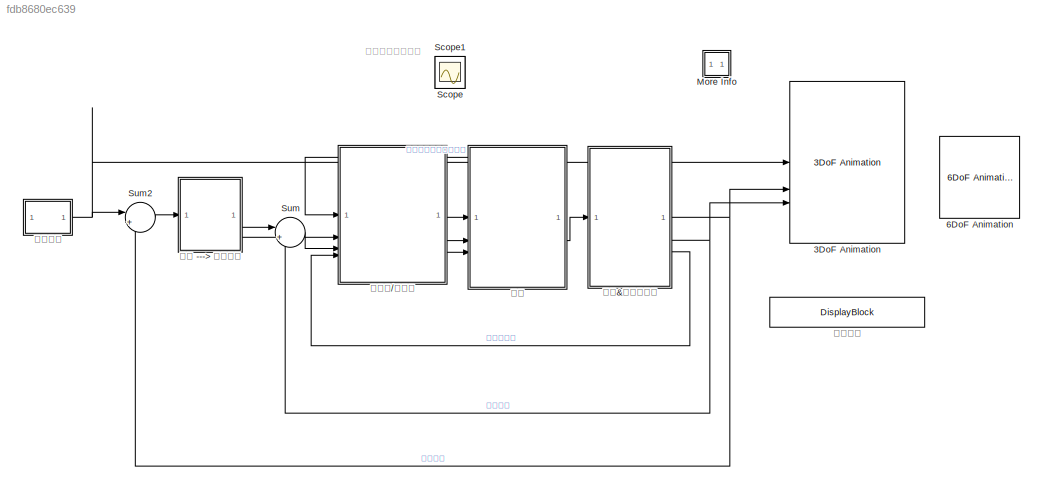
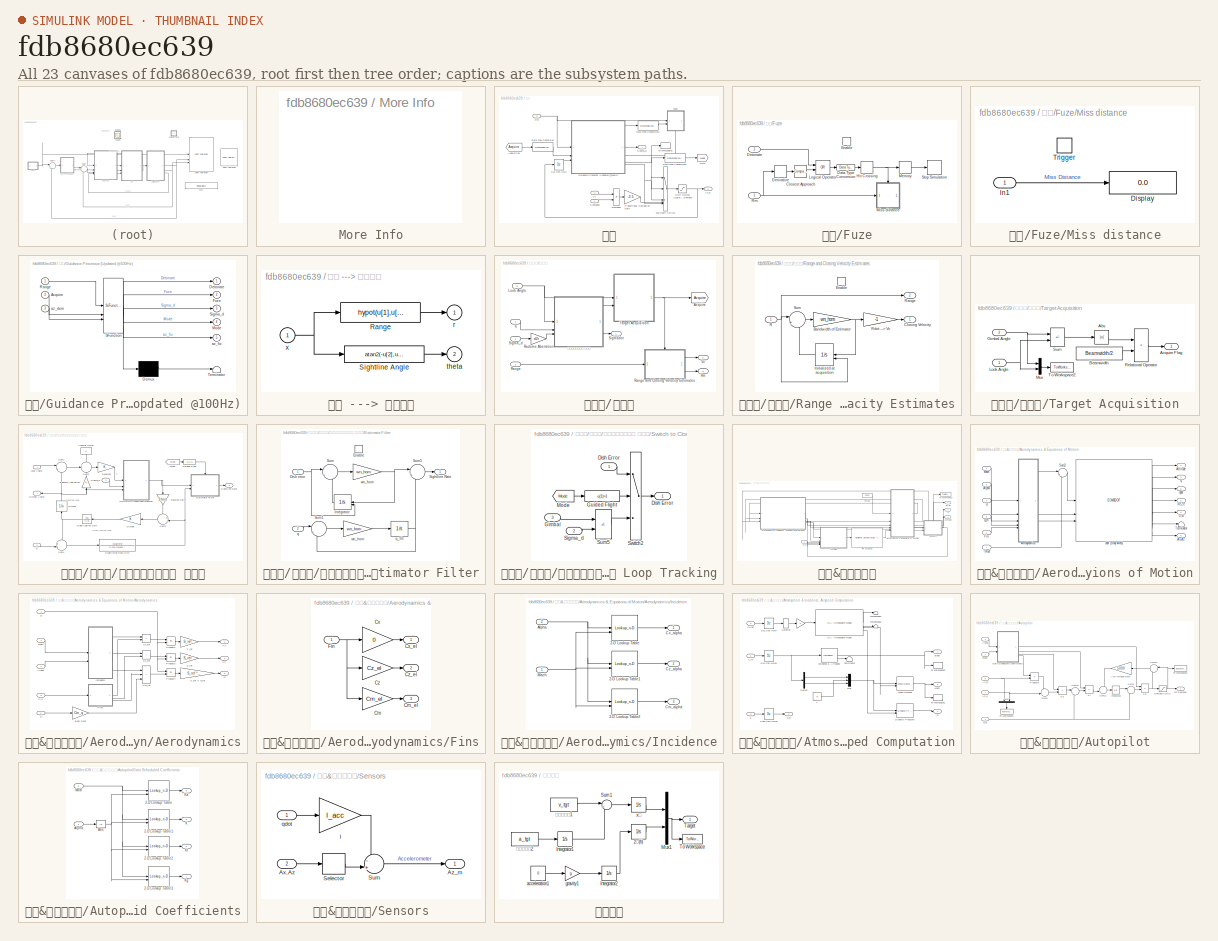
[diagram: thumbnail index - all 23 canvases of the model, root first then tree order]
MODEL slx_fdb8680ec639
KIND model
CONFIG AbsTol = 1e-6
CONFIG EnableMultiTasking = off
CONFIG FixedStep = 0.001
CONFIG MaxStep = auto
CONFIG MinStep = auto
CONFIG PreLoadFcn = aero_guid_dat
CONFIG RelTol = 1e-3
CONFIG SampleTimeConstraint = Unconstrained
CONFIG SolverName = FixedStepAuto
CONFIG StartTime = 0.0
CONFIG StopFcn = aero_guid_plot
CONFIG StopTime = 20
BLOCK [Reference] 3DoF Animation  REF=aerolibanim/3DoF Animation
  SourceBlock = aerolibanim/3DoF Animation
  SourceType = 3DoF_Animation
BLOCK [Reference] 6DoF Animation  REF=aerolibanim/6DoF Animation
  SourceBlock = aerolibanim/6DoF Animation
  SourceType = 6DoF_Animation
BLOCK [SubSystem] More Info
  OpenFcn = showExample('simulink_aerospace/DesigningAGuidanceSystemInMATLABAndSimulinkExample')
BLOCK [Scope] Scope
  Floating = off
  IOType = viewer
  NumInputPorts = 1
  ScopeSpecificationString = Simulink.scopes.TimeScopeBlockCfg('CurrentConfiguration', extmgr.ConfigurationSet(extmgr.Configuration('Core','General UI',true),extmgr.Configuration('Core','Source UI',true),extmgr.Configuration('Sources','WiredSimulink',true),extmgr.Configuration('Visuals','Time Domain',true,'SerializedDisplays',{struct('MinYLimReal','-10.00000','MaxYLimReal','10.00000','YLabelReal','','MinYLimMag','0.00000','Ma...<+1326ch>
BLOCK [Scope] Scope1
  Floating = off
  IOType = viewer
  NumInputPorts = 1
  ScopeSpecificationString = Simulink.scopes.TimeScopeBlockCfg('CurrentConfiguration', extmgr.ConfigurationSet(extmgr.Configuration('Core','General UI',true),extmgr.Configuration('Core','Source UI',true),extmgr.Configuration('Sources','WiredSimulink',true,'DataLoggingVariableName','ScopeData1'),extmgr.Configuration('Visuals','Time Domain',true,'SerializedDisplays',{struct('MinYLimReal','-10.00000','MaxYLimReal','10.00000','YL...<+1365ch>
BLOCK [Sum] Sum
  InputSameDT = on
  Inputs = |+-
  OutDataTypeStr = Inherit: Same as first input
  SaturateOnIntegerOverflow = on
BLOCK [Sum] Sum2
  InputSameDT = on
  Inputs = |+-
  OutDataTypeStr = Inherit: Same as first input
  SaturateOnIntegerOverflow = on
BLOCK [SubSystem] 制导
BLOCK [UnitDelay] 制导/0.01 Sec Hold
  HasFrameUpgradeWarning = on
  SampleTime = 0.01
BLOCK [From] 制导/Acquisition 
  GotoTag = Acquire
  TagVisibility = global
BLOCK [Outport] 制导/Az_d
  Port = 2
  VectorParamsAs1DForOutWhenUnconnected = off
BLOCK [DataTypeConversion] 制导/Data Type Conversion
  RndMeth = Floor
  SaturateOnIntegerOverflow = off
BLOCK [DataTypeConversion] 制导/Data Type Conversion1
  RndMeth = Floor
  SaturateOnIntegerOverflow = off
BLOCK [DataTypeConversion] 制导/Data Type Conversion2
  RndMeth = Floor
  SaturateOnIntegerOverflow = off
BLOCK [Product] 制导/Demands
  InputSameDT = on
  OutDataTypeStr = Inherit: Same as first input
  SaturateOnIntegerOverflow = on
BLOCK [SubSystem] 制导/Fuze
  NameLocation = top
  ShowPortLabels = none
  TreatAsAtomicUnit = on
BLOCK [Reference] 制导/Fuze/Closest Approach  REF=simulink/Logic and Bit
Operations/Compare
To Zero
  SourceBlock = simulink/Logic and Bit\nOperations/Compare\nTo Zero
  SourceType = Compare To Zero
BLOCK [DataTypeConversion] 制导/Fuze/Data Type Conversion
  OutDataTypeStr = double
  RndMeth = Floor
  SaturateOnIntegerOverflow = off
BLOCK [Derivative] 制导/Fuze/Derivative
BLOCK [Inport] 制导/Fuze/Detonate
  Port = 2
BLOCK [EnablePort] 制导/Fuze/Enable
BLOCK [HitCross] 制导/Fuze/Hit Crossing
  HitCrossingDirection = rising
BLOCK [Logic] 制导/Fuze/Logical Operator
  IconShape = distinctive
  NameLocation = top
  Operator = OR
  OutDataTypeStr = boolean
BLOCK [Memory] 制导/Fuze/Memory
BLOCK [SubSystem] 制导/Fuze/Miss distance
  ShowPortLabels = none
  TreatAsAtomicUnit = on
BLOCK [Display] 制导/Fuze/Miss distance/Display
  Decimation = 1
BLOCK [Inport] 制导/Fuze/Miss distance/In1
BLOCK [TriggerPort] 制导/Fuze/Miss distance/Trigger
  VariantControl = (inherit)
BLOCK [Inport] 制导/Fuze/Rm
BLOCK [Stop] 制导/Fuze/Stop Simulation
BLOCK [Goto] 制导/Goto
  GotoTag = Mode
  TagVisibility = global
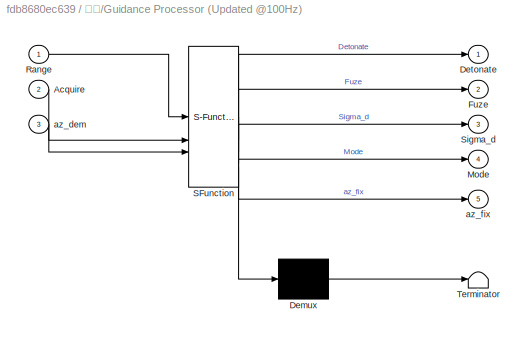
BLOCK [SubSystem] 制导/Guidance Processor (Updated @100Hz)
  ErrorFcn = Stateflow.Translate.translate
  PermitHierarchicalResolution = ExplicitOnly
  SFBlockType = Chart
  TreatAsAtomicUnit = on
BLOCK [Demux] 制导/Guidance Processor (Updated @100Hz)/ Demux 
  Outputs = 1
BLOCK [S-Function] 制导/Guidance Processor (Updated @100Hz)/ SFunction 
  EnableBusSupport = on
  FunctionName = sf_sfun
  PortCounts = [3 6]
  SFcnIsStateOwnerBlock = off
  SFunctionDeploymentMode = off
  Tag = Stateflow S-Function 1
BLOCK [Terminator] 制导/Guidance Processor (Updated @100Hz)/ Terminator 
BLOCK [Inport] 制导/Guidance Processor (Updated @100Hz)/Acquire
  Port = 2
BLOCK [Outport] 制导/Guidance Processor (Updated @100Hz)/Detonate
  VectorParamsAs1DForOutWhenUnconnected = off
BLOCK [Outport] 制导/Guidance Processor (Updated @100Hz)/Fuze
  Port = 2
  VectorParamsAs1DForOutWhenUnconnected = off
BLOCK [Outport] 制导/Guidance Processor (Updated @100Hz)/Mode
  Port = 4
  VectorParamsAs1DForOutWhenUnconnected = off
BLOCK [Inport] 制导/Guidance Processor (Updated @100Hz)/Range
BLOCK [Outport] 制导/Guidance Processor (Updated @100Hz)/Sigma_d
  Port = 3
  VectorParamsAs1DForOutWhenUnconnected = off
BLOCK [Inport] 制导/Guidance Processor (Updated @100Hz)/az_dem
  Port = 3
BLOCK [Outport] 制导/Guidance Processor (Updated @100Hz)/az_fix
  Port = 5
  VectorParamsAs1DForOutWhenUnconnected = off
BLOCK [Saturate] 制导/Limit Normal Acceleration Demand 
  LowerLimit = -max_acc
  UpperLimit = max_acc
BLOCK [MultiPortSwitch] 制导/Multiport Switch
  Inputs = 4
BLOCK [Gain] 制导/Proportional Navigation Gain
  Gain = -3.5
  OutDataTypeStr = Inherit: Same as input
  ParamDataTypeStr = Inherit: Same as input
  SaturateOnIntegerOverflow = on
BLOCK [Inport] 制导/Rm
  Port = 3
BLOCK [Outport] 制导/Sigma_d
  VectorParamsAs1DForOutWhenUnconnected = off
BLOCK [Inport] 制导/Sigmadot
BLOCK [ToWorkspace] 制导/To Workspace1
  MaxDataPoints = inf
  SaveFormat = Structure With Time
  VariableName = Mode
BLOCK [Inport] 制导/Vc
  NameLocation = top
  Port = 2
BLOCK [SubSystem] 导弹 ---> 目标分离
BLOCK [Fcn] 导弹 ---> 目标分离/Range
  Expr = hypot(u[1],u[2])
BLOCK [Fcn] 导弹 ---> 目标分离/Sightline Angle
  Expr = atan2(-u[2],u[1])
BLOCK [Outport] 导弹 ---> 目标分离/r
  InitialOutput = 0
  VectorParamsAs1DForOutWhenUnconnected = off
BLOCK [Outport] 导弹 ---> 目标分离/theta
  InitialOutput = 0
  Port = 2
  VectorParamsAs1DForOutWhenUnconnected = off
BLOCK [Inport] 导弹 ---> 目标分离/x
BLOCK [SubSystem] 导弹头//跟踪器
BLOCK [Goto] 导弹头//跟踪器/Acquire
  GotoTag = Acquire
  NameLocation = top
  TagVisibility = global
BLOCK [Inport] 导弹头//跟踪器/Look Angle
  Port = 3
BLOCK [Gain] 导弹头//跟踪器/Radome Aberration
  Gain = d2r
  OutDataTypeStr = Inherit: Same as input
  ParamDataTypeStr = Inherit: Same as input
  SaturateOnIntegerOverflow = on
BLOCK [Inport] 导弹头//跟踪器/Range
  Port = 2
BLOCK [SubSystem] 导弹头//跟踪器/Range and Closing Velocity Estimates
  TreatAsAtomicUnit = on
BLOCK [Gain] 导弹头//跟踪器/Range and Closing Velocity Estimates/Bandwidth of Estimator
  Gain = wn_hom
  OutDataTypeStr = Inherit: Same as input
  ParamDataTypeStr = Inherit: Same as input
  SaturateOnIntegerOverflow = on
BLOCK [Outport] 导弹头//跟踪器/Range and Closing Velocity Estimates/Closing Velocity
  InitialOutput = 0
  VectorParamsAs1DForOutWhenUnconnected = off
BLOCK [EnablePort] 导弹头//跟踪器/Range and Closing Velocity Estimates/Enable
  StatesWhenEnabling = reset
BLOCK [Integrator] 导弹头//跟踪器/Range and Closing Velocity Estimates/Initialized at acquisition
  InitialConditionSource = external
BLOCK [Inport] 导弹头//跟踪器/Range and Closing Velocity Estimates/R
BLOCK [Outport] 导弹头//跟踪器/Range and Closing Velocity Estimates/Range
  InitialOutput = 0
  Port = 2
  VectorParamsAs1DForOutWhenUnconnected = off
BLOCK [Gain] 导弹头//跟踪器/Range and Closing Velocity Estimates/Rdot ---> Vc
  Gain = -1
  OutDataTypeStr = Inherit: Same as input
  ParamDataTypeStr = Inherit: Same as input
  SaturateOnIntegerOverflow = on
BLOCK [Sum] 导弹头//跟踪器/Range and Closing Velocity Estimates/Sum
  InputSameDT = on
  Inputs = |+-
  OutDataTypeStr = Inherit: Same as first input
  SaturateOnIntegerOverflow = on
BLOCK [Outport] 导弹头//跟踪器/Rm
  Port = 3
  VectorParamsAs1DForOutWhenUnconnected = off
BLOCK [Inport] 导弹头//跟踪器/Sigma_d
BLOCK [Outport] 导弹头//跟踪器/Sigmadot
  VectorParamsAs1DForOutWhenUnconnected = off
BLOCK [SubSystem] 导弹头//跟踪器/Target Acquisition
BLOCK [Abs] 导弹头//跟踪器/Target Acquisition/Abs
BLOCK [Outport] 导弹头//跟踪器/Target Acquisition/Acquire Flag
  VectorParamsAs1DForOutWhenUnconnected = off
BLOCK [Constant] 导弹头//跟踪器/Target Acquisition/Beamwidth
  Value = Beamwidth/2
BLOCK [Inport] 导弹头//跟踪器/Target Acquisition/Gimbal Angle
  Port = 2
BLOCK [Inport] 导弹头//跟踪器/Target Acquisition/Look Angle
BLOCK [Mux] 导弹头//跟踪器/Target Acquisition/Mux
  DisplayOption = bar
  Inputs = 2
  NameLocation = top
BLOCK [RelationalOperator] 导弹头//跟踪器/Target Acquisition/Relational Operator
  Operator = <
  OutDataTypeStr = boolean
BLOCK [Sum] 导弹头//跟踪器/Target Acquisition/Sum
  IconShape = rectangular
  InputSameDT = on
  Inputs = +-
  OutDataTypeStr = Inherit: Same as first input
  SaturateOnIntegerOverflow = on
BLOCK [ToWorkspace] 导弹头//跟踪器/Target Acquisition/To Workspace2
  MaxDataPoints = inf
  NameLocation = top
  SampleTime = -1
  SaveFormat = Structure With Time
  VariableName = Gimbal
BLOCK [Outport] 导弹头//跟踪器/Vc
  Port = 2
  VectorParamsAs1DForOutWhenUnconnected = off
BLOCK [Inport] 导弹头//跟踪器/q
  Port = 4
BLOCK [SubSystem] 导弹头//跟踪器/追踪器和视线速率 估计量
BLOCK [Constant] 导弹头//跟踪器/追踪器和视线速率 估计量/Angular Noise
  NameLocation = left
  Value = 0
BLOCK [SubSystem] 导弹头//跟踪器/追踪器和视线速率 估计量/Estimator Filter
  TreatAsAtomicUnit = on
BLOCK [Inport] 导弹头//跟踪器/追踪器和视线速率 估计量/Estimator Filter/Dish error
BLOCK [EnablePort] 导弹头//跟踪器/追踪器和视线速率 估计量/Estimator Filter/Enable
  StatesWhenEnabling = reset
BLOCK [Integrator] 导弹头//跟踪器/追踪器和视线速率 估计量/Estimator Filter/Integrator
  InitialConditionSource = external
BLOCK [Outport] 导弹头//跟踪器/追踪器和视线速率 估计量/Estimator Filter/Sightline Rate
  InitialOutput = 0
  VectorParamsAs1DForOutWhenUnconnected = off
BLOCK [Sum] 导弹头//跟踪器/追踪器和视线速率 估计量/Estimator Filter/Sum
  InputSameDT = on
  Inputs = |+-
  OutDataTypeStr = Inherit: Same as first input
  SaturateOnIntegerOverflow = on
BLOCK [Sum] 导弹头//跟踪器/追踪器和视线速率 估计量/Estimator Filter/Sum1
  InputSameDT = on
  Inputs = |+-
  OutDataTypeStr = Inherit: Same as first input
  SaturateOnIntegerOverflow = on
BLOCK [Sum] 导弹头//跟踪器/追踪器和视线速率 估计量/Estimator Filter/Sum5
  InputSameDT = on
  Inputs = |++
  OutDataTypeStr = Inherit: Same as first input
  SaturateOnIntegerOverflow = on
BLOCK [Inport] 导弹头//跟踪器/追踪器和视线速率 估计量/Estimator Filter/q
  Port = 2
BLOCK [Integrator] 导弹头//跟踪器/追踪器和视线速率 估计量/Estimator Filter/q_filt
BLOCK [Gain] 导弹头//跟踪器/追踪器和视线速率 估计量/Estimator Filter/wn_hom
  Gain = wn_hom
  OutDataTypeStr = Inherit: Same as input
  ParamDataTypeStr = Inherit: Same as input
  SaturateOnIntegerOverflow = on
BLOCK [Gain] 导弹头//跟踪器/追踪器和视线速率 估计量/Estimator Filter/wn_hom  
  Gain = wn_hom
  OutDataTypeStr = Inherit: Same as input
  ParamDataTypeStr = Inherit: Same as input
  SaturateOnIntegerOverflow = on
BLOCK [Gain] 导弹头//跟踪器/追踪器和视线速率 估计量/Gimbal
  OutDataTypeStr = Inherit: Same as input
  ParamDataTypeStr = Inherit: Same as input
  SaturateOnIntegerOverflow = on
BLOCK [Integrator] 导弹头//跟踪器/追踪器和视线速率 估计量/Gimbal 
  LimitOutput = on
  LowerSaturationLimit = min_gimbal
  NameLocation = left
  UpperSaturationLimit = max_gimbal
BLOCK [Outport] 导弹头//跟踪器/追踪器和视线速率 估计量/Gimbal Angle 
  VectorParamsAs1DForOutWhenUnconnected = off
BLOCK [Fcn] 导弹头//跟踪器/追踪器和视线速率 估计量/Guided Flight
  Expr = u(1)>1
BLOCK [Inport] 导弹头//跟踪器/追踪器和视线速率 估计量/Look Angle
BLOCK [From] 导弹头//跟踪器/追踪器和视线速率 估计量/Mode
  GotoTag = Mode
  TagVisibility = global
BLOCK [Gain] 导弹头//跟踪器/追踪器和视线速率 估计量/Radome Aberration
  Gain = K_r
  NameLocation = left
  OutDataTypeStr = Inherit: Same as input
  ParamDataTypeStr = Inherit: Same as input
  SaturateOnIntegerOverflow = on
BLOCK [Gain] 导弹头//跟踪器/追踪器和视线速率 估计量/Receiver
  OutDataTypeStr = Inherit: Same as input
  ParamDataTypeStr = Inherit: Same as input
  SaturateOnIntegerOverflow = on
BLOCK [Outport] 导弹头//跟踪器/追踪器和视线速率 估计量/Sightline Rate
  Port = 2
  VectorParamsAs1DForOutWhenUnconnected = off
BLOCK [Inport] 导弹头//跟踪器/追踪器和视线速率 估计量/Sigma_d
  Port = 3
BLOCK [TransferFcn] 导弹头//跟踪器/追踪器和视线速率 估计量/Stabilization Gain
  Denominator = [1 0]
  Numerator = [Ks]
BLOCK [TransferFcn] 导弹头//跟踪器/追踪器和视线速率 估计量/Stabilizing Rate Gyro
  Denominator = [1 2*0.7*wgyro wgyro^2]
  Numerator = [wgyro^2]
BLOCK [Sum] 导弹头//跟踪器/追踪器和视线速率 估计量/Sum1
  InputSameDT = on
  Inputs = |+-
  OutDataTypeStr = Inherit: Same as first input
  SaturateOnIntegerOverflow = on
BLOCK [Sum] 导弹头//跟踪器/追踪器和视线速率 估计量/Sum2
  InputSameDT = on
  Inputs = +++
  OutDataTypeStr = Inherit: Same as first input
  SaturateOnIntegerOverflow = on
BLOCK [Sum] 导弹头//跟踪器/追踪器和视线速率 估计量/Sum3
  InputSameDT = on
  Inputs = +-|
  OutDataTypeStr = Inherit: Same as first input
  SaturateOnIntegerOverflow = on
BLOCK [Sum] 导弹头//跟踪器/追踪器和视线速率 估计量/Sum4
  InputSameDT = on
  Inputs = ++|
  OutDataTypeStr = Inherit: Same as first input
  SaturateOnIntegerOverflow = on
BLOCK [SubSystem] 导弹头//跟踪器/追踪器和视线速率 估计量/Switch to Closed Loop Tracking
BLOCK [Inport] 导弹头//跟踪器/追踪器和视线速率 估计量/Switch to Closed Loop Tracking/Dish Error
BLOCK [Outport] 导弹头//跟踪器/追踪器和视线速率 估计量/Switch to Closed Loop Tracking/Dish Error 
  VectorParamsAs1DForOutWhenUnconnected = off
BLOCK [Inport] 导弹头//跟踪器/追踪器和视线速率 估计量/Switch to Closed Loop Tracking/Gimbal
  Port = 3
BLOCK [Fcn] 导弹头//跟踪器/追踪器和视线速率 估计量/Switch to Closed Loop Tracking/Guided Flight
  Expr = u(1)>1
  NameLocation = top
BLOCK [From] 导弹头//跟踪器/追踪器和视线速率 估计量/Switch to Closed Loop Tracking/Mode
  GotoTag = Mode
  TagVisibility = global
BLOCK [Inport] 导弹头//跟踪器/追踪器和视线速率 估计量/Switch to Closed Loop Tracking/Sigma_d
  Port = 2
BLOCK [Sum] 导弹头//跟踪器/追踪器和视线速率 估计量/Switch to Closed Loop Tracking/Sum5
  IconShape = rectangular
  InputSameDT = on
  Inputs = -+
  OutDataTypeStr = Inherit: Same as first input
  SaturateOnIntegerOverflow = on
BLOCK [Switch] 导弹头//跟踪器/追踪器和视线速率 估计量/Switch to Closed Loop Tracking/Switch2
  Threshold = 0.5
BLOCK [Gain] 导弹头//跟踪器/追踪器和视线速率 估计量/Tracking Gain
  Gain = 1/tors
  NameLocation = right
  OutDataTypeStr = Inherit: Same as input
  ParamDataTypeStr = Inherit: Same as input
  SaturateOnIntegerOverflow = on
BLOCK [Inport] 导弹头//跟踪器/追踪器和视线速率 估计量/q
  Port = 2
BLOCK [SubSystem] 机身&自动驾驶仪
BLOCK [SubSystem] 机身&自动驾驶仪/Aerodynamics & Equations of Motion
BLOCK [EOM3DOF] 机身&自动驾驶仪/Aerodynamics & Equations of Motion/3dof (Body Axes)
  Iyy = Iyy
  abi_flag = on
  alpha_ini = alpha_ini
  g = g
  mass = mass
  pos_ini = [x_ini -h_ini]
  q_ini = q_ini
  theta_ini = theta_ini
  v_ini = v_ini
BLOCK [SubSystem] 机身&自动驾驶仪/Aerodynamics & Equations of Motion/Aerodynamics
BLOCK [Outport] 机身&自动驾驶仪/Aerodynamics & Equations of Motion/Aerodynamics/ M
  InitialOutput = 0
  Port = 3
  VectorParamsAs1DForOutWhenUnconnected = off
BLOCK [Inport] 机身&自动驾驶仪/Aerodynamics & Equations of Motion/Aerodynamics/Alpha
  Port = 2
BLOCK [Gain] 机身&自动驾驶仪/Aerodynamics & Equations of Motion/Aerodynamics/Body Rate
  Gain = Cm_q
  OutDataTypeStr = Inherit: Same as input
  ParamDataTypeStr = Inherit: Same as input
  SaturateOnIntegerOverflow = on
BLOCK [Sum] 机身&自动驾驶仪/Aerodynamics & Equations of Motion/Aerodynamics/Cm_tot
  IconShape = rectangular
  InputSameDT = on
  Inputs = +++
  OutDataTypeStr = Inherit: Same as first input
  SaturateOnIntegerOverflow = on
BLOCK [Sum] 机身&自动驾驶仪/Aerodynamics & Equations of Motion/Aerodynamics/Cx_tot
  IconShape = rectangular
  InputSameDT = on
  OutDataTypeStr = Inherit: Same as first input
  SaturateOnIntegerOverflow = on
BLOCK [Sum] 机身&自动驾驶仪/Aerodynamics & Equations of Motion/Aerodynamics/Cz_tot
  IconShape = rectangular
  InputSameDT = on
  OutDataTypeStr = Inherit: Same as first input
  SaturateOnIntegerOverflow = on
BLOCK [Inport] 机身&自动驾驶仪/Aerodynamics & Equations of Motion/Aerodynamics/Fin
  Port = 5
BLOCK [SubSystem] 机身&自动驾驶仪/Aerodynamics & Equations of Motion/Aerodynamics/Fins
BLOCK [Gain] 机身&自动驾驶仪/Aerodynamics & Equations of Motion/Aerodynamics/Fins/Cm
  Gain = Cm_el
  OutDataTypeStr = Inherit: Same as input
  ParamDataTypeStr = Inherit: Same as input
  SaturateOnIntegerOverflow = on
BLOCK [Outport] 机身&自动驾驶仪/Aerodynamics & Equations of Motion/Aerodynamics/Fins/Cm_el
  InitialOutput = 0
  Port = 3
  VectorParamsAs1DForOutWhenUnconnected = off
BLOCK [Gain] 机身&自动驾驶仪/Aerodynamics & Equations of Motion/Aerodynamics/Fins/Cx
  Gain = 0
  OutDataTypeStr = Inherit: Same as input
  ParamDataTypeStr = Inherit: Same as input
  SaturateOnIntegerOverflow = on
BLOCK [Outport] 机身&自动驾驶仪/Aerodynamics & Equations of Motion/Aerodynamics/Fins/Cx_el
  InitialOutput = 0
  VectorParamsAs1DForOutWhenUnconnected = off
BLOCK [Gain] 机身&自动驾驶仪/Aerodynamics & Equations of Motion/Aerodynamics/Fins/Cz
  Gain = Cz_el
  OutDataTypeStr = Inherit: Same as input
  ParamDataTypeStr = Inherit: Same as input
  SaturateOnIntegerOverflow = on
BLOCK [Outport] 机身&自动驾驶仪/Aerodynamics & Equations of Motion/Aerodynamics/Fins/Cz_el
  InitialOutput = 0
  Port = 2
  VectorParamsAs1DForOutWhenUnconnected = off
BLOCK [Inport] 机身&自动驾驶仪/Aerodynamics & Equations of Motion/Aerodynamics/Fins/Fin
BLOCK [Outport] 机身&自动驾驶仪/Aerodynamics & Equations of Motion/Aerodynamics/Fx
  InitialOutput = [0]
  VectorParamsAs1DForOutWhenUnconnected = off
BLOCK [Outport] 机身&自动驾驶仪/Aerodynamics & Equations of Motion/Aerodynamics/Fz
  InitialOutput = 0
  Port = 2
  VectorParamsAs1DForOutWhenUnconnected = off
BLOCK [SubSystem] 机身&自动驾驶仪/Aerodynamics & Equations of Motion/Aerodynamics/Incidence
BLOCK [Lookup_n-D] 机身&自动驾驶仪/Aerodynamics & Equations of Motion/Aerodynamics/Incidence/2-D Lookup Table
  BreakpointsForDimension1 = alpha_vec
  BreakpointsForDimension2 = Mach_vec
  InputPortMap = u0,u1
  InternalRulePriority = Speed
  RndMeth = Simplest
  Table = Cx_alpha
BLOCK [Lookup_n-D] 机身&自动驾驶仪/Aerodynamics & Equations of Motion/Aerodynamics/Incidence/2-D Lookup Table1
  BreakpointsForDimension1 = alpha_vec
  BreakpointsForDimension2 = Mach_vec
  InputPortMap = u0,u1
  InternalRulePriority = Speed
  RndMeth = Simplest
  Table = Cz_alpha
BLOCK [Lookup_n-D] 机身&自动驾驶仪/Aerodynamics & Equations of Motion/Aerodynamics/Incidence/2-D Lookup Table2
  BreakpointsForDimension1 = alpha_vec
  BreakpointsForDimension2 = Mach_vec
  InputPortMap = u0,u1
  InternalRulePriority = Speed
  RndMeth = Simplest
  Table = Cm_alpha
BLOCK [Inport] 机身&自动驾驶仪/Aerodynamics & Equations of Motion/Aerodynamics/Incidence/Alpha
  Port = 2
BLOCK [Outport] 机身&自动驾驶仪/Aerodynamics & Equations of Motion/Aerodynamics/Incidence/Cm_alpha
  InitialOutput = 0
  Port = 3
  VectorParamsAs1DForOutWhenUnconnected = off
BLOCK [Outport] 机身&自动驾驶仪/Aerodynamics & Equations of Motion/Aerodynamics/Incidence/Cx_alpha
  InitialOutput = 0
  VectorParamsAs1DForOutWhenUnconnected = off
BLOCK [Outport] 机身&自动驾驶仪/Aerodynamics & Equations of Motion/Aerodynamics/Incidence/Cz_alpha
  InitialOutput = 0
  Port = 2
  VectorParamsAs1DForOutWhenUnconnected = off
BLOCK [Inport] 机身&自动驾驶仪/Aerodynamics & Equations of Motion/Aerodynamics/Incidence/Mach
BLOCK [Inport] 机身&自动驾驶仪/Aerodynamics & Equations of Motion/Aerodynamics/Mach
BLOCK [Product] 机身&自动驾驶仪/Aerodynamics & Equations of Motion/Aerodynamics/Product2
  InputSameDT = on
  OutDataTypeStr = Inherit: Same as first input
  SaturateOnIntegerOverflow = on
BLOCK [Product] 机身&自动驾驶仪/Aerodynamics & Equations of Motion/Aerodynamics/Product3
  InputSameDT = on
  OutDataTypeStr = Inherit: Same as first input
  SaturateOnIntegerOverflow = on
BLOCK [Product] 机身&自动驾驶仪/Aerodynamics & Equations of Motion/Aerodynamics/Product4
  InputSameDT = on
  OutDataTypeStr = Inherit: Same as first input
  SaturateOnIntegerOverflow = on
BLOCK [Inport] 机身&自动驾驶仪/Aerodynamics & Equations of Motion/Aerodynamics/Q
  Port = 3
BLOCK [Gain] 机身&自动驾驶仪/Aerodynamics & Equations of Motion/Aerodynamics/S_ref
  Gain = S_ref
  OutDataTypeStr = Inherit: Same as input
  ParamDataTypeStr = Inherit: Same as input
  SaturateOnIntegerOverflow = on
BLOCK [Gain] 机身&自动驾驶仪/Aerodynamics & Equations of Motion/Aerodynamics/S_ref 
  Gain = S_ref
  OutDataTypeStr = Inherit: Same as input
  ParamDataTypeStr = Inherit: Same as input
  SaturateOnIntegerOverflow = on
BLOCK [Gain] 机身&自动驾驶仪/Aerodynamics & Equations of Motion/Aerodynamics/S_ref X d_ref
  Gain = S_ref * d_ref
  OutDataTypeStr = Inherit: Same as input
  ParamDataTypeStr = Inherit: Same as input
  SaturateOnIntegerOverflow = on
BLOCK [Inport] 机身&自动驾驶仪/Aerodynamics & Equations of Motion/Aerodynamics/q
  Port = 4
BLOCK [Inport] 机身&自动驾驶仪/Aerodynamics & Equations of Motion/Alpha
  Port = 5
BLOCK [Outport] 机身&自动驾驶仪/Aerodynamics & Equations of Motion/Attitude
  InitialOutput = 0
  Port = 4
  VectorParamsAs1DForOutWhenUnconnected = off
BLOCK [Outport] 机身&自动驾驶仪/Aerodynamics & Equations of Motion/Ax,Az
  InitialOutput = 0
  Port = 6
  VectorParamsAs1DForOutWhenUnconnected = off
BLOCK [Inport] 机身&自动驾驶仪/Aerodynamics & Equations of Motion/Fin
  Port = 6
BLOCK [Inport] 机身&自动驾驶仪/Aerodynamics & Equations of Motion/Mach
  Port = 4
BLOCK [Inport] 机身&自动驾驶仪/Aerodynamics & Equations of Motion/Q
  Port = 2
BLOCK [Sum] 机身&自动驾驶仪/Aerodynamics & Equations of Motion/Sum2
  InputSameDT = on
  Inputs = |++
  OutDataTypeStr = Inherit: Same as first input
  SaturateOnIntegerOverflow = on
BLOCK [Terminator] 机身&自动驾驶仪/Aerodynamics & Equations of Motion/Terminator
BLOCK [Inport] 机身&自动驾驶仪/Aerodynamics & Equations of Motion/Thrust
BLOCK [Outport] 机身&自动驾驶仪/Aerodynamics & Equations of Motion/U,w
  InitialOutput = 0
  VectorParamsAs1DForOutWhenUnconnected = off
BLOCK [Outport] 机身&自动驾驶仪/Aerodynamics & Equations of Motion/Xe,Ze
  InitialOutput = 0
  Port = 2
  VectorParamsAs1DForOutWhenUnconnected = off
BLOCK [Outport] 机身&自动驾驶仪/Aerodynamics & Equations of Motion/q
  InitialOutput = 0
  Port = 3
  VectorParamsAs1DForOutWhenUnconnected = off
BLOCK [Inport] 机身&自动驾驶仪/Aerodynamics & Equations of Motion/q_m
  Port = 3
BLOCK [Outport] 机身&自动驾驶仪/Aerodynamics & Equations of Motion/qdot
  InitialOutput = 0
  Port = 5
  VectorParamsAs1DForOutWhenUnconnected = off
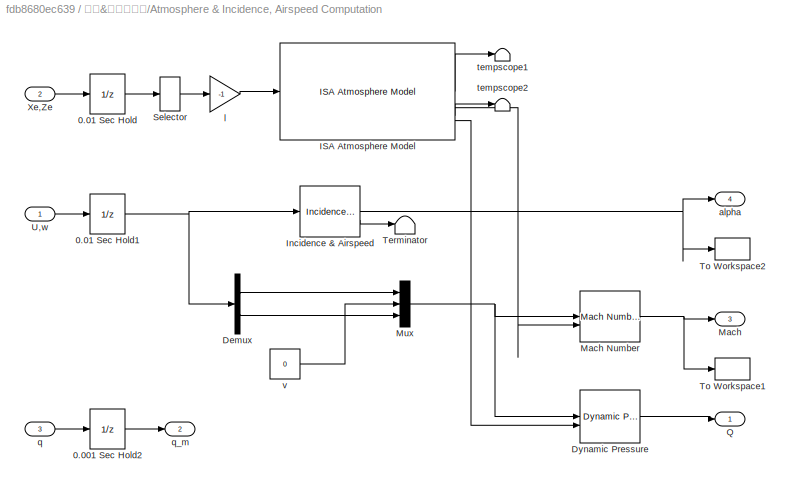
BLOCK [SubSystem] 机身&自动驾驶仪/Atmosphere & Incidence, Airspeed Computation
BLOCK [UnitDelay] 机身&自动驾驶仪/Atmosphere & Incidence, Airspeed Computation/0.001 Sec Hold2
  HasFrameUpgradeWarning = on
  InitialCondition = q_ini
  SampleTime = 0.001
BLOCK [UnitDelay] 机身&自动驾驶仪/Atmosphere & Incidence, Airspeed Computation/0.01 Sec Hold
  HasFrameUpgradeWarning = on
  InitialCondition = [x_ini -h_ini]
  SampleTime = 0.01
BLOCK [UnitDelay] 机身&自动驾驶仪/Atmosphere & Incidence, Airspeed Computation/0.01 Sec Hold1
  HasFrameUpgradeWarning = on
  InitialCondition = [v_ini 0]
  SampleTime = 0.01
BLOCK [Demux] 机身&自动驾驶仪/Atmosphere & Incidence, Airspeed Computation/Demux
  Outputs = 2
BLOCK [Reference] 机身&自动驾驶仪/Atmosphere & Incidence, Airspeed Computation/Dynamic Pressure  REF=aerolibasang/Dynamic Pressure
  SourceBlock = aerolibasang/Dynamic Pressure
  SourceType = Dynamic Pressure
BLOCK [Reference] 机身&自动驾驶仪/Atmosphere & Incidence, Airspeed Computation/ISA Atmosphere Model  REF=aerolibatmos2/ISA Atmosphere Model
  SourceBlock = aerolibatmos2/ISA Atmosphere Model
  SourceType = International Standard Atmosphere Model
BLOCK [Reference] 机身&自动驾驶仪/Atmosphere & Incidence, Airspeed Computation/Incidence & Airspeed  REF=aerolibasang/Incidence 
& Airspeed
  SourceBlock = aerolibasang/Incidence \n& Airspeed
  SourceType = Incidence&Airspeed
BLOCK [Outport] 机身&自动驾驶仪/Atmosphere & Incidence, Airspeed Computation/Mach
  Port = 3
BLOCK [Reference] 机身&自动驾驶仪/Atmosphere & Incidence, Airspeed Computation/Mach Number  REF=aerolibasang/Mach Number
  SourceBlock = aerolibasang/Mach Number
  SourceType = Mach Number
BLOCK [Mux] 机身&自动驾驶仪/Atmosphere & Incidence, Airspeed Computation/Mux
  Inputs = 3
BLOCK [Outport] 机身&自动驾驶仪/Atmosphere & Incidence, Airspeed Computation/Q
BLOCK [Selector] 机身&自动驾驶仪/Atmosphere & Incidence, Airspeed Computation/Selector
  IndexOptions = Index vector (dialog)
  Indices = [2]
  InputPortWidth = 2
  OutputSizes = 1
BLOCK [Terminator] 机身&自动驾驶仪/Atmosphere & Incidence, Airspeed Computation/Terminator
BLOCK [ToWorkspace] 机身&自动驾驶仪/Atmosphere & Incidence, Airspeed Computation/To Workspace1
  MaxDataPoints = inf
  SampleTime = -1
  SaveFormat = Structure With Time
  VariableName = Mach
BLOCK [ToWorkspace] 机身&自动驾驶仪/Atmosphere & Incidence, Airspeed Computation/To Workspace2
  MaxDataPoints = inf
  SampleTime = -1
  SaveFormat = Structure With Time
  VariableName = Incid
BLOCK [Inport] 机身&自动驾驶仪/Atmosphere & Incidence, Airspeed Computation/U,w
BLOCK [Inport] 机身&自动驾驶仪/Atmosphere & Incidence, Airspeed Computation/Xe,Ze
  Port = 2
BLOCK [Outport] 机身&自动驾驶仪/Atmosphere & Incidence, Airspeed Computation/alpha
  Port = 4
BLOCK [Gain] 机身&自动驾驶仪/Atmosphere & Incidence, Airspeed Computation/l
  Gain = -1
  OutDataTypeStr = Inherit: Same as input
  ParamDataTypeStr = Inherit: Same as input
  SaturateOnIntegerOverflow = on
BLOCK [Inport] 机身&自动驾驶仪/Atmosphere & Incidence, Airspeed Computation/q
  Port = 3
BLOCK [Outport] 机身&自动驾驶仪/Atmosphere & Incidence, Airspeed Computation/q_m
  Port = 2
BLOCK [Terminator] 机身&自动驾驶仪/Atmosphere & Incidence, Airspeed Computation/tempscope1
BLOCK [Terminator] 机身&自动驾驶仪/Atmosphere & Incidence, Airspeed Computation/tempscope2
BLOCK [Constant] 机身&自动驾驶仪/Atmosphere & Incidence, Airspeed Computation/v
  Value = 0
BLOCK [Outport] 机身&自动驾驶仪/Attitude
  InitialOutput = 0
  Port = 2
  VectorParamsAs1DForOutWhenUnconnected = off
BLOCK [SubSystem] 机身&自动驾驶仪/Autopilot
BLOCK [Inport] 机身&自动驾驶仪/Autopilot/Alpha
BLOCK [Gain] 机身&自动驾驶仪/Autopilot/Anti-Windup Gain
  Gain = 5000
  OutDataTypeStr = Inherit: Same as input
  ParamDataTypeStr = Inherit: Same as input
  SaturateOnIntegerOverflow = on
BLOCK [Inport] 机身&自动驾驶仪/Autopilot/Az_d
  Port = 4
BLOCK [Inport] 机身&自动驾驶仪/Autopilot/Az_m
  Port = 5
BLOCK [Saturate] 机身&自动驾驶仪/Autopilot/Demand limits 
  LowerLimit = fin_min
  UpperLimit = fin_max
BLOCK [Outport] 机身&自动驾驶仪/Autopilot/Fin Demand
  InitialOutput = 0
  VectorParamsAs1DForOutWhenUnconnected = off
BLOCK [SubSystem] 机身&自动驾驶仪/Autopilot/Gain Scheduled Coefficients
BLOCK [Lookup_n-D] 机身&自动驾驶仪/Autopilot/Gain Scheduled Coefficients/2-D Lookup Table
  BreakpointsForDimension1 = M_sch
  BreakpointsForDimension2 = alpha_sch
  InputPortMap = u0,u1
  InternalRulePriority = Speed
  RndMeth = Simplest
  Table = Ka
BLOCK [Lookup_n-D] 机身&自动驾驶仪/Autopilot/Gain Scheduled Coefficients/2-D Lookup Table1
  BreakpointsForDimension1 = M_sch
  BreakpointsForDimension2 = alpha_sch
  InputPortMap = u0,u1
  InternalRulePriority = Speed
  RndMeth = Simplest
  Table = K
BLOCK [Lookup_n-D] 机身&自动驾驶仪/Autopilot/Gain Scheduled Coefficients/2-D Lookup Table2
  BreakpointsForDimension1 = M_sch
  BreakpointsForDimension2 = alpha_sch
  InputPortMap = u0,u1
  InternalRulePriority = Speed
  RndMeth = Simplest
  Table = Ki
BLOCK [Lookup_n-D] 机身&自动驾驶仪/Autopilot/Gain Scheduled Coefficients/2-D Lookup Table3
  BreakpointsForDimension1 = M_sch
  BreakpointsForDimension2 = alpha_sch
  InputPortMap = u0,u1
  InternalRulePriority = Speed
  RndMeth = Simplest
  Table = Kg
BLOCK [Abs] 机身&自动驾驶仪/Autopilot/Gain Scheduled Coefficients/Abs
BLOCK [Inport] 机身&自动驾驶仪/Autopilot/Gain Scheduled Coefficients/Alpha
BLOCK [Outport] 机身&自动驾驶仪/Autopilot/Gain Scheduled Coefficients/K 
  InitialOutput = 0
  Port = 3
  VectorParamsAs1DForOutWhenUnconnected = off
BLOCK [Outport] 机身&自动驾驶仪/Autopilot/Gain Scheduled Coefficients/KI 
  InitialOutput = 0
  Port = 2
  VectorParamsAs1DForOutWhenUnconnected = off
BLOCK [Outport] 机身&自动驾驶仪/Autopilot/Gain Scheduled Coefficients/Ka 
  InitialOutput = 0
  Port = 4
  VectorParamsAs1DForOutWhenUnconnected = off
BLOCK [Outport] 机身&自动驾驶仪/Autopilot/Gain Scheduled Coefficients/Kg 
  InitialOutput = 0
  VectorParamsAs1DForOutWhenUnconnected = off
BLOCK [Inport] 机身&自动驾驶仪/Autopilot/Gain Scheduled Coefficients/Mach
  Port = 2
BLOCK [Integrator] 机身&自动驾驶仪/Autopilot/Integrator
BLOCK [Product] 机身&自动驾驶仪/Autopilot/KI
  InputSameDT = on
  OutDataTypeStr = Inherit: Same as first input
  SaturateOnIntegerOverflow = on
BLOCK [Product] 机身&自动驾驶仪/Autopilot/Ka
  InputSameDT = on
  OutDataTypeStr = Inherit: Same as first input
  SaturateOnIntegerOverflow = on
BLOCK [Product] 机身&自动驾驶仪/Autopilot/Kg
  InputSameDT = on
  OutDataTypeStr = Inherit: Same as first input
  SaturateOnIntegerOverflow = on
BLOCK [Inport] 机身&自动驾驶仪/Autopilot/Mach
  Port = 2
BLOCK [Mux] 机身&自动驾驶仪/Autopilot/Mux
  DisplayOption = bar
  Inputs = 2
  NameLocation = left
BLOCK [Product] 机身&自动驾驶仪/Autopilot/Product6
  InputSameDT = on
  OutDataTypeStr = Inherit: Same as first input
  SaturateOnIntegerOverflow = on
BLOCK [Sum] 机身&自动驾驶仪/Autopilot/Sum10
  InputSameDT = on
  Inputs = |++
  OutDataTypeStr = Inherit: Same as first input
  SaturateOnIntegerOverflow = on
BLOCK [Sum] 机身&自动驾驶仪/Autopilot/Sum11
  InputSameDT = on
  Inputs = -+|
  OutDataTypeStr = Inherit: Same as first input
  SaturateOnIntegerOverflow = on
BLOCK [Sum] 机身&自动驾驶仪/Autopilot/Sum12
  InputSameDT = on
  Inputs = |-+
  OutDataTypeStr = Inherit: Same as first input
  SaturateOnIntegerOverflow = on
BLOCK [Sum] 机身&自动驾驶仪/Autopilot/Sum8
  InputSameDT = on
  Inputs = |++
  OutDataTypeStr = Inherit: Same as first input
  SaturateOnIntegerOverflow = on
BLOCK [Sum] 机身&自动驾驶仪/Autopilot/Sum9
  InputSameDT = on
  Inputs = -+|
  OutDataTypeStr = Inherit: Same as first input
  SaturateOnIntegerOverflow = on
BLOCK [ToWorkspace] 机身&自动驾驶仪/Autopilot/To Workspace2
  MaxDataPoints = inf
  SampleTime = -1
  SaveFormat = Structure With Time
  VariableName = Fin_dem
BLOCK [ToWorkspace] 机身&自动驾驶仪/Autopilot/To Workspace3
  MaxDataPoints = inf
  NameLocation = left
  SampleTime = -1
  SaveFormat = Structure With Time
  VariableName = Latax
BLOCK [Inport] 机身&自动驾驶仪/Autopilot/q_m
  Port = 3
BLOCK [Inport] 机身&自动驾驶仪/Az_d
BLOCK [Reference] 机身&自动驾驶仪/Fin Actuator  REF=aerolibactuator/Nonlinear Second-Order Actuator
  SourceBlock = aerolibactuator/Nonlinear Second-Order Actuator
  SourceType = NonlinearSecondOrderActuator
BLOCK [SubSystem] 机身&自动驾驶仪/Sensors
  NameLocation = top
BLOCK [Inport] 机身&自动驾驶仪/Sensors/Ax,Az
  Port = 2
BLOCK [Outport] 机身&自动驾驶仪/Sensors/Az_m
  InitialOutput = 0
  VectorParamsAs1DForOutWhenUnconnected = off
BLOCK [Selector] 机身&自动驾驶仪/Sensors/Selector
  IndexOptions = Index vector (dialog)
  Indices = [2]
  InputPortWidth = 2
  OutputSizes = 1
BLOCK [Sum] 机身&自动驾驶仪/Sensors/Sum
  InputSameDT = on
  Inputs = -+|
  OutDataTypeStr = Inherit: Same as first input
  SaturateOnIntegerOverflow = on
BLOCK [Gain] 机身&自动驾驶仪/Sensors/l
  Gain = l_acc
  OutDataTypeStr = Inherit: Same as input
  ParamDataTypeStr = Inherit: Same as input
  SaturateOnIntegerOverflow = on
BLOCK [Inport] 机身&自动驾驶仪/Sensors/qdot
BLOCK [Constant] 机身&自动驾驶仪/Thrust
  Value = Thrust
BLOCK [ToWorkspace] 机身&自动驾驶仪/To Workspace
  MaxDataPoints = inf
  SampleTime = -1
  SaveFormat = Structure With Time
  VariableName = Miss_pos
BLOCK [Outport] 机身&自动驾驶仪/Xe,Ze
  InitialOutput = 0
  VectorParamsAs1DForOutWhenUnconnected = off
BLOCK [Outport] 机身&自动驾驶仪/q
  InitialOutput = 0
  Port = 3
  VectorParamsAs1DForOutWhenUnconnected = off
BLOCK [SubSystem] 目标位置
BLOCK [Integrator] 目标位置/Integrator1
BLOCK [Integrator] 目标位置/Integrator2
BLOCK [Mux] 目标位置/Mux1
  DisplayOption = bar
  Inputs = 2
BLOCK [Sum] 目标位置/Sum1
  Inputs = |++
BLOCK [Outport] 目标位置/Target
  VectorParamsAs1DForOutWhenUnconnected = off
BLOCK [ToWorkspace] 目标位置/To Workspace
  MaxDataPoints = inf
  SampleTime = -1
  SaveFormat = Structure
  VariableName = Tgt_pos
BLOCK [Constant] 目标位置/acceleration1
  Value = 0
BLOCK [Gain] 目标位置/gravity1
  Gain = g
BLOCK [Integrator] 目标位置/x轴
  InitialCondition = pos_tgt(1)
BLOCK [Integrator] 目标位置/z轴(h)
  InitialCondition = pos_tgt(2)
BLOCK [Constant] 目标位置/目标的速度1
  Value = v_tgt
BLOCK [Constant] 目标位置/目标的速度2
  Value = a_tgt
BLOCK [DisplayBlock] 脱靶距离
  LabelPosition = Hide
  Transparency = 1
ANNOTATION (root): 导弹制导系统例子
ANNOTATION 导弹头//跟踪器/追踪器和视线速率 估计量: Stabilization Loop
ANNOTATION 导弹头//跟踪器/追踪器和视线速率 估计量: Tracking Loop
LINE Sum2:1 -> 导弹 ---> 目标分离:1
LINE Sum:1 -> 导弹头//跟踪器:3
LINE 制导/0.01 Sec Hold:1 -> 制导/Guidance Processor (Updated @100Hz):3
LINE 制导/Acquisition :1 -> 制导/Data Type Conversion:1
LINE 制导/Data Type Conversion1:1 -> 制导/Fuze:2
LINE 制导/Data Type Conversion2:1 -> 制导/Goto:1
LINE 制导/Data Type Conversion:1 -> 制导/Guidance Processor (Updated @100Hz):2
LINE 制导/Demands:1 -> 制导/Proportional Navigation Gain:1
LINE 制导/Fuze/Closest Approach:1 -> 制导/Fuze/Logical Operator:2
LINE 制导/Fuze/Data Type Conversion:1 -> 制导/Fuze/Hit Crossing:1
LINE 制导/Fuze/Derivative:1 -> 制导/Fuze/Closest Approach:1
LINE 制导/Fuze/Detonate:1 -> 制导/Fuze/Logical Operator:1
NET 制导/Fuze/Hit Crossing:1 -> 制导/Fuze/Memory:1, 制导/Fuze/Miss distance:trigger
LINE 制导/Fuze/Logical Operator:1 -> 制导/Fuze/Data Type Conversion:1
LINE 制导/Fuze/Memory:1 -> 制导/Fuze/Stop Simulation:1
LINE 制导/Fuze/Miss distance/In1:1 -> 制导/Fuze/Miss distance/Display:1
NET 制导/Fuze/Rm:1 -> 制导/Fuze/Derivative:1, 制导/Fuze/Miss distance:1
LINE 制导/Guidance Processor (Updated @100Hz):1 -> 制导/Data Type Conversion1:1
LINE 制导/Guidance Processor (Updated @100Hz):2 -> 制导/Fuze:enable
LINE 制导/Guidance Processor (Updated @100Hz):3 -> 制导/Sigma_d:1
NET 制导/Guidance Processor (Updated @100Hz):4 -> 制导/Data Type Conversion2:1, 制导/Multiport Switch:1, 制导/To Workspace1:1
NET 制导/Guidance Processor (Updated @100Hz):5 -> 制导/Multiport Switch:2, 制导/Multiport Switch:3, 制导/Multiport Switch:5
NET 制导/Limit Normal Acceleration Demand :1 -> 制导/0.01 Sec Hold:1, 制导/Az_d:1
LINE 制导/Multiport Switch:1 -> 制导/Limit Normal Acceleration Demand :1
LINE 制导/Proportional Navigation Gain:1 -> 制导/Multiport Switch:4
NET 制导/Rm:1 -> 制导/Fuze:1, 制导/Guidance Processor (Updated @100Hz):1
LINE 制导/Sigmadot:1 -> 制导/Demands:2
LINE 制导/Vc:1 -> 制导/Demands:1
LINE 制导:1 -> 导弹头//跟踪器:1
LINE 制导:2 -> 机身&自动驾驶仪:1
LINE 导弹 ---> 目标分离/Range:1 -> 导弹 ---> 目标分离/r:1
LINE 导弹 ---> 目标分离/Sightline Angle:1 -> 导弹 ---> 目标分离/theta:1
NET 导弹 ---> 目标分离/x:1 -> 导弹 ---> 目标分离/Range:1, 导弹 ---> 目标分离/Sightline Angle:1
LINE 导弹 ---> 目标分离:1 -> 导弹头//跟踪器:2
LINE 导弹 ---> 目标分离:2 -> Sum:1
NET 导弹头//跟踪器/Look Angle:1 -> 导弹头//跟踪器/Target Acquisition:1, 导弹头//跟踪器/追踪器和视线速率 估计量:1
LINE 导弹头//跟踪器/Radome Aberration:1 -> 导弹头//跟踪器/追踪器和视线速率 估计量:3
NET 导弹头//跟踪器/Range and Closing Velocity Estimates/Bandwidth of Estimator:1 -> 导弹头//跟踪器/Range and Closing Velocity Estimates/Initialized at acquisition:1, 导弹头//跟踪器/Range and Closing Velocity Estimates/Rdot ---> Vc:1
LINE 导弹头//跟踪器/Range and Closing Velocity Estimates/Initialized at acquisition:1 -> 导弹头//跟踪器/Range and Closing Velocity Estimates/Sum:2
NET 导弹头//跟踪器/Range and Closing Velocity Estimates/R:1 -> 导弹头//跟踪器/Range and Closing Velocity Estimates/Initialized at acquisition:2, 导弹头//跟踪器/Range and Closing Velocity Estimates/Range:1, 导弹头//跟踪器/Range and Closing Velocity Estimates/Sum:1
LINE 导弹头//跟踪器/Range and Closing Velocity Estimates/Rdot ---> Vc:1 -> 导弹头//跟踪器/Range and Closing Velocity Estimates/Closing Velocity:1
LINE 导弹头//跟踪器/Range and Closing Velocity Estimates/Sum:1 -> 导弹头//跟踪器/Range and Closing Velocity Estimates/Bandwidth of Estimator:1
LINE 导弹头//跟踪器/Range and Closing Velocity Estimates:1 -> 导弹头//跟踪器/Vc:1
LINE 导弹头//跟踪器/Range and Closing Velocity Estimates:2 -> 导弹头//跟踪器/Rm:1
LINE 导弹头//跟踪器/Range:1 -> 导弹头//跟踪器/Range and Closing Velocity Estimates:1
LINE 导弹头//跟踪器/Sigma_d:1 -> 导弹头//跟踪器/Radome Aberration:1
LINE 导弹头//跟踪器/Target Acquisition/Abs:1 -> 导弹头//跟踪器/Target Acquisition/Relational Operator:1
LINE 导弹头//跟踪器/Target Acquisition/Beamwidth:1 -> 导弹头//跟踪器/Target Acquisition/Relational Operator:2
NET 导弹头//跟踪器/Target Acquisition/Gimbal Angle:1 -> 导弹头//跟踪器/Target Acquisition/Mux:1, 导弹头//跟踪器/Target Acquisition/Sum:1
NET 导弹头//跟踪器/Target Acquisition/Look Angle:1 -> 导弹头//跟踪器/Target Acquisition/Mux:2, 导弹头//跟踪器/Target Acquisition/Sum:2
LINE 导弹头//跟踪器/Target Acquisition/Mux:1 -> 导弹头//跟踪器/Target Acquisition/To Workspace2:1
LINE 导弹头//跟踪器/Target Acquisition/Relational Operator:1 -> 导弹头//跟踪器/Target Acquisition/Acquire Flag:1
LINE 导弹头//跟踪器/Target Acquisition/Sum:1 -> 导弹头//跟踪器/Target Acquisition/Abs:1
NET 导弹头//跟踪器/Target Acquisition:1 -> 导弹头//跟踪器/Acquire:1, 导弹头//跟踪器/Range and Closing Velocity Estimates:enable
LINE 导弹头//跟踪器/q:1 -> 导弹头//跟踪器/追踪器和视线速率 估计量:2
LINE 导弹头//跟踪器/追踪器和视线速率 估计量/Angular Noise:1 -> 导弹头//跟踪器/追踪器和视线速率 估计量/Sum2:1
NET 导弹头//跟踪器/追踪器和视线速率 估计量/Estimator Filter/Dish error:1 -> 导弹头//跟踪器/追踪器和视线速率 估计量/Estimator Filter/Integrator:2, 导弹头//跟踪器/追踪器和视线速率 估计量/Estimator Filter/Sum:1
LINE 导弹头//跟踪器/追踪器和视线速率 估计量/Estimator Filter/Integrator:1 -> 导弹头//跟踪器/追踪器和视线速率 估计量/Estimator Filter/Sum:2
LINE 导弹头//跟踪器/追踪器和视线速率 估计量/Estimator Filter/Sum1:1 -> 导弹头//跟踪器/追踪器和视线速率 估计量/Estimator Filter/wn_hom  :1
LINE 导弹头//跟踪器/追踪器和视线速率 估计量/Estimator Filter/Sum5:1 -> 导弹头//跟踪器/追踪器和视线速率 估计量/Estimator Filter/Sightline Rate:1
LINE 导弹头//跟踪器/追踪器和视线速率 估计量/Estimator Filter/Sum:1 -> 导弹头//跟踪器/追踪器和视线速率 估计量/Estimator Filter/wn_hom:1
LINE 导弹头//跟踪器/追踪器和视线速率 估计量/Estimator Filter/q:1 -> 导弹头//跟踪器/追踪器和视线速率 估计量/Estimator Filter/Sum1:1
NET 导弹头//跟踪器/追踪器和视线速率 估计量/Estimator Filter/q_filt:1 -> 导弹头//跟踪器/追踪器和视线速率 估计量/Estimator Filter/Sum1:2, 导弹头//跟踪器/追踪器和视线速率 估计量/Estimator Filter/Sum5:2
LINE 导弹头//跟踪器/追踪器和视线速率 估计量/Estimator Filter/wn_hom  :1 -> 导弹头//跟踪器/追踪器和视线速率 估计量/Estimator Filter/q_filt:1
NET 导弹头//跟踪器/追踪器和视线速率 估计量/Estimator Filter/wn_hom:1 -> 导弹头//跟踪器/追踪器和视线速率 估计量/Estimator Filter/Integrator:1, 导弹头//跟踪器/追踪器和视线速率 估计量/Estimator Filter/Sum5:1
LINE 导弹头//跟踪器/追踪器和视线速率 估计量/Estimator Filter:1 -> 导弹头//跟踪器/追踪器和视线速率 估计量/Sightline Rate:1
NET 导弹头//跟踪器/追踪器和视线速率 估计量/Gimbal :1 -> 导弹头//跟踪器/追踪器和视线速率 估计量/Gimbal Angle :1, 导弹头//跟踪器/追踪器和视线速率 估计量/Radome Aberration:1, 导弹头//跟踪器/追踪器和视线速率 估计量/Sum1:2, 导弹头//跟踪器/追踪器和视线速率 估计量/Switch to Closed Loop Tracking:3
LINE 导弹头//跟踪器/追踪器和视线速率 估计量/Gimbal:1 -> 导弹头//跟踪器/追踪器和视线速率 估计量/Stabilization Gain:1
LINE 导弹头//跟踪器/追踪器和视线速率 估计量/Guided Flight:1 -> 导弹头//跟踪器/追踪器和视线速率 估计量/Estimator Filter:enable
LINE 导弹头//跟踪器/追踪器和视线速率 估计量/Look Angle:1 -> 导弹头//跟踪器/追踪器和视线速率 估计量/Sum1:1
LINE 导弹头//跟踪器/追踪器和视线速率 估计量/Mode:1 -> 导弹头//跟踪器/追踪器和视线速率 估计量/Guided Flight:1
LINE 导弹头//跟踪器/追踪器和视线速率 估计量/Radome Aberration:1 -> 导弹头//跟踪器/追踪器和视线速率 估计量/Sum2:3
LINE 导弹头//跟踪器/追踪器和视线速率 估计量/Receiver:1 -> 导弹头//跟踪器/追踪器和视线速率 估计量/Switch to Closed Loop Tracking:1
LINE 导弹头//跟踪器/追踪器和视线速率 估计量/Sigma_d:1 -> 导弹头//跟踪器/追踪器和视线速率 估计量/Switch to Closed Loop Tracking:2
NET 导弹头//跟踪器/追踪器和视线速率 估计量/Stabilization Gain:1 -> 导弹头//跟踪器/追踪器和视线速率 估计量/Gimbal :1, 导弹头//跟踪器/追踪器和视线速率 估计量/Sum4:1
NET 导弹头//跟踪器/追踪器和视线速率 估计量/Stabilizing Rate Gyro:1 -> 导弹头//跟踪器/追踪器和视线速率 估计量/Estimator Filter:2, 导弹头//跟踪器/追踪器和视线速率 估计量/Sum3:2
LINE 导弹头//跟踪器/追踪器和视线速率 估计量/Sum1:1 -> 导弹头//跟踪器/追踪器和视线速率 估计量/Sum2:2
LINE 导弹头//跟踪器/追踪器和视线速率 估计量/Sum2:1 -> 导弹头//跟踪器/追踪器和视线速率 估计量/Receiver:1
LINE 导弹头//跟踪器/追踪器和视线速率 估计量/Sum3:1 -> 导弹头//跟踪器/追踪器和视线速率 估计量/Gimbal:1
LINE 导弹头//跟踪器/追踪器和视线速率 估计量/Sum4:1 -> 导弹头//跟踪器/追踪器和视线速率 估计量/Stabilizing Rate Gyro:1
LINE 导弹头//跟踪器/追踪器和视线速率 估计量/Switch to Closed Loop Tracking/Dish Error:1 -> 导弹头//跟踪器/追踪器和视线速率 估计量/Switch to Closed Loop Tracking/Switch2:1
LINE 导弹头//跟踪器/追踪器和视线速率 估计量/Switch to Closed Loop Tracking/Gimbal:1 -> 导弹头//跟踪器/追踪器和视线速率 估计量/Switch to Closed Loop Tracking/Sum5:1
LINE 导弹头//跟踪器/追踪器和视线速率 估计量/Switch to Closed Loop Tracking/Guided Flight:1 -> 导弹头//跟踪器/追踪器和视线速率 估计量/Switch to Closed Loop Tracking/Switch2:2
LINE 导弹头//跟踪器/追踪器和视线速率 估计量/Switch to Closed Loop Tracking/Mode:1 -> 导弹头//跟踪器/追踪器和视线速率 估计量/Switch to Closed Loop Tracking/Guided Flight:1
LINE 导弹头//跟踪器/追踪器和视线速率 估计量/Switch to Closed Loop Tracking/Sigma_d:1 -> 导弹头//跟踪器/追踪器和视线速率 估计量/Switch to Closed Loop Tracking/Sum5:2
LINE 导弹头//跟踪器/追踪器和视线速率 估计量/Switch to Closed Loop Tracking/Sum5:1 -> 导弹头//跟踪器/追踪器和视线速率 估计量/Switch to Closed Loop Tracking/Switch2:3
LINE 导弹头//跟踪器/追踪器和视线速率 估计量/Switch to Closed Loop Tracking/Switch2:1 -> 导弹头//跟踪器/追踪器和视线速率 估计量/Switch to Closed Loop Tracking/Dish Error :1
NET 导弹头//跟踪器/追踪器和视线速率 估计量/Switch to Closed Loop Tracking:1 -> 导弹头//跟踪器/追踪器和视线速率 估计量/Estimator Filter:1, 导弹头//跟踪器/追踪器和视线速率 估计量/Tracking Gain:1
LINE 导弹头//跟踪器/追踪器和视线速率 估计量/Tracking Gain:1 -> 导弹头//跟踪器/追踪器和视线速率 估计量/Sum3:1
LINE 导弹头//跟踪器/追踪器和视线速率 估计量/q:1 -> 导弹头//跟踪器/追踪器和视线速率 估计量/Sum4:2
LINE 导弹头//跟踪器/追踪器和视线速率 估计量:1 -> 导弹头//跟踪器/Target Acquisition:2
LINE 导弹头//跟踪器/追踪器和视线速率 估计量:2 -> 导弹头//跟踪器/Sigmadot:1
LINE 导弹头//跟踪器:1 -> 制导:1
LINE 导弹头//跟踪器:2 -> 制导:2
LINE 导弹头//跟踪器:3 -> 制导:3
LINE 机身&自动驾驶仪/Aerodynamics & Equations of Motion/3dof (Body Axes):1 -> 机身&自动驾驶仪/Aerodynamics & Equations of Motion/Attitude:1
LINE 机身&自动驾驶仪/Aerodynamics & Equations of Motion/3dof (Body Axes):2 -> 机身&自动驾驶仪/Aerodynamics & Equations of Motion/q:1
LINE 机身&自动驾驶仪/Aerodynamics & Equations of Motion/3dof (Body Axes):3 -> 机身&自动驾驶仪/Aerodynamics & Equations of Motion/qdot:1
LINE 机身&自动驾驶仪/Aerodynamics & Equations of Motion/3dof (Body Axes):4 -> 机身&自动驾驶仪/Aerodynamics & Equations of Motion/Xe,Ze:1
LINE 机身&自动驾驶仪/Aerodynamics & Equations of Motion/3dof (Body Axes):5 -> 机身&自动驾驶仪/Aerodynamics & Equations of Motion/U,w:1
LINE 机身&自动驾驶仪/Aerodynamics & Equations of Motion/3dof (Body Axes):6 -> 机身&自动驾驶仪/Aerodynamics & Equations of Motion/Terminator:1
LINE 机身&自动驾驶仪/Aerodynamics & Equations of Motion/3dof (Body Axes):7 -> 机身&自动驾驶仪/Aerodynamics & Equations of Motion/Ax,Az:1
LINE 机身&自动驾驶仪/Aerodynamics & Equations of Motion/Aerodynamics/Alpha:1 -> 机身&自动驾驶仪/Aerodynamics & Equations of Motion/Aerodynamics/Incidence:2
LINE 机身&自动驾驶仪/Aerodynamics & Equations of Motion/Aerodynamics/Body Rate:1 -> 机身&自动驾驶仪/Aerodynamics & Equations of Motion/Aerodynamics/Cm_tot:3
LINE 机身&自动驾驶仪/Aerodynamics & Equations of Motion/Aerodynamics/Cm_tot:1 -> 机身&自动驾驶仪/Aerodynamics & Equations of Motion/Aerodynamics/Product4:2
LINE 机身&自动驾驶仪/Aerodynamics & Equations of Motion/Aerodynamics/Cx_tot:1 -> 机身&自动驾驶仪/Aerodynamics & Equations of Motion/Aerodynamics/Product2:1
LINE 机身&自动驾驶仪/Aerodynamics & Equations of Motion/Aerodynamics/Cz_tot:1 -> 机身&自动驾驶仪/Aerodynamics & Equations of Motion/Aerodynamics/Product3:1
LINE 机身&自动驾驶仪/Aerodynamics & Equations of Motion/Aerodynamics/Fin:1 -> 机身&自动驾驶仪/Aerodynamics & Equations of Motion/Aerodynamics/Fins:1
LINE 机身&自动驾驶仪/Aerodynamics & Equations of Motion/Aerodynamics/Fins/Cm:1 -> 机身&自动驾驶仪/Aerodynamics & Equations of Motion/Aerodynamics/Fins/Cm_el:1
LINE 机身&自动驾驶仪/Aerodynamics & Equations of Motion/Aerodynamics/Fins/Cx:1 -> 机身&自动驾驶仪/Aerodynamics & Equations of Motion/Aerodynamics/Fins/Cx_el:1
LINE 机身&自动驾驶仪/Aerodynamics & Equations of Motion/Aerodynamics/Fins/Cz:1 -> 机身&自动驾驶仪/Aerodynamics & Equations of Motion/Aerodynamics/Fins/Cz_el:1
NET 机身&自动驾驶仪/Aerodynamics & Equations of Motion/Aerodynamics/Fins/Fin:1 -> 机身&自动驾驶仪/Aerodynamics & Equations of Motion/Aerodynamics/Fins/Cm:1, 机身&自动驾驶仪/Aerodynamics & Equations of Motion/Aerodynamics/Fins/Cx:1, 机身&自动驾驶仪/Aerodynamics & Equations of Motion/Aerodynamics/Fins/Cz:1
LINE 机身&自动驾驶仪/Aerodynamics & Equations of Motion/Aerodynamics/Fins:1 -> 机身&自动驾驶仪/Aerodynamics & Equations of Motion/Aerodynamics/Cx_tot:2
LINE 机身&自动驾驶仪/Aerodynamics & Equations of Motion/Aerodynamics/Fins:2 -> 机身&自动驾驶仪/Aerodynamics & Equations of Motion/Aerodynamics/Cz_tot:2
LINE 机身&自动驾驶仪/Aerodynamics & Equations of Motion/Aerodynamics/Fins:3 -> 机身&自动驾驶仪/Aerodynamics & Equations of Motion/Aerodynamics/Cm_tot:2
LINE 机身&自动驾驶仪/Aerodynamics & Equations of Motion/Aerodynamics/Incidence/2-D Lookup Table1:1 -> 机身&自动驾驶仪/Aerodynamics & Equations of Motion/Aerodynamics/Incidence/Cz_alpha:1
LINE 机身&自动驾驶仪/Aerodynamics & Equations of Motion/Aerodynamics/Incidence/2-D Lookup Table2:1 -> 机身&自动驾驶仪/Aerodynamics & Equations of Motion/Aerodynamics/Incidence/Cm_alpha:1
LINE 机身&自动驾驶仪/Aerodynamics & Equations of Motion/Aerodynamics/Incidence/2-D Lookup Table:1 -> 机身&自动驾驶仪/Aerodynamics & Equations of Motion/Aerodynamics/Incidence/Cx_alpha:1
NET 机身&自动驾驶仪/Aerodynamics & Equations of Motion/Aerodynamics/Incidence/Alpha:1 -> 机身&自动驾驶仪/Aerodynamics & Equations of Motion/Aerodynamics/Incidence/2-D Lookup Table1:1, 机身&自动驾驶仪/Aerodynamics & Equations of Motion/Aerodynamics/Incidence/2-D Lookup Table2:1, 机身&自动驾驶仪/Aerodynamics & Equations of Motion/Aerodynamics/Incidence/2-D Lookup Table:1
NET 机身&自动驾驶仪/Aerodynamics & Equations of Motion/Aerodynamics/Incidence/Mach:1 -> 机身&自动驾驶仪/Aerodynamics & Equations of Motion/Aerodynamics/Incidence/2-D Lookup Table1:2, 机身&自动驾驶仪/Aerodynamics & Equations of Motion/Aerodynamics/Incidence/2-D Lookup Table2:2, 机身&自动驾驶仪/Aerodynamics & Equations of Motion/Aerodynamics/Incidence/2-D Lookup Table:2
LINE 机身&自动驾驶仪/Aerodynamics & Equations of Motion/Aerodynamics/Incidence:1 -> 机身&自动驾驶仪/Aerodynamics & Equations of Motion/Aerodynamics/Cx_tot:1
LINE 机身&自动驾驶仪/Aerodynamics & Equations of Motion/Aerodynamics/Incidence:2 -> 机身&自动驾驶仪/Aerodynamics & Equations of Motion/Aerodynamics/Cz_tot:1
LINE 机身&自动驾驶仪/Aerodynamics & Equations of Motion/Aerodynamics/Incidence:3 -> 机身&自动驾驶仪/Aerodynamics & Equations of Motion/Aerodynamics/Cm_tot:1
LINE 机身&自动驾驶仪/Aerodynamics & Equations of Motion/Aerodynamics/Mach:1 -> 机身&自动驾驶仪/Aerodynamics & Equations of Motion/Aerodynamics/Incidence:1
LINE 机身&自动驾驶仪/Aerodynamics & Equations of Motion/Aerodynamics/Product2:1 -> 机身&自动驾驶仪/Aerodynamics & Equations of Motion/Aerodynamics/S_ref:1
LINE 机身&自动驾驶仪/Aerodynamics & Equations of Motion/Aerodynamics/Product3:1 -> 机身&自动驾驶仪/Aerodynamics & Equations of Motion/Aerodynamics/S_ref :1
LINE 机身&自动驾驶仪/Aerodynamics & Equations of Motion/Aerodynamics/Product4:1 -> 机身&自动驾驶仪/Aerodynamics & Equations of Motion/Aerodynamics/S_ref X d_ref:1
NET 机身&自动驾驶仪/Aerodynamics & Equations of Motion/Aerodynamics/Q:1 -> 机身&自动驾驶仪/Aerodynamics & Equations of Motion/Aerodynamics/Product2:2, 机身&自动驾驶仪/Aerodynamics & Equations of Motion/Aerodynamics/Product3:2, 机身&自动驾驶仪/Aerodynamics & Equations of Motion/Aerodynamics/Product4:1
LINE 机身&自动驾驶仪/Aerodynamics & Equations of Motion/Aerodynamics/S_ref :1 -> 机身&自动驾驶仪/Aerodynamics & Equations of Motion/Aerodynamics/Fz:1
LINE 机身&自动驾驶仪/Aerodynamics & Equations of Motion/Aerodynamics/S_ref X d_ref:1 -> 机身&自动驾驶仪/Aerodynamics & Equations of Motion/Aerodynamics/ M:1
LINE 机身&自动驾驶仪/Aerodynamics & Equations of Motion/Aerodynamics/S_ref:1 -> 机身&自动驾驶仪/Aerodynamics & Equations of Motion/Aerodynamics/Fx:1
LINE 机身&自动驾驶仪/Aerodynamics & Equations of Motion/Aerodynamics/q:1 -> 机身&自动驾驶仪/Aerodynamics & Equations of Motion/Aerodynamics/Body Rate:1
LINE 机身&自动驾驶仪/Aerodynamics & Equations of Motion/Aerodynamics:1 -> 机身&自动驾驶仪/Aerodynamics & Equations of Motion/Sum2:1
LINE 机身&自动驾驶仪/Aerodynamics & Equations of Motion/Aerodynamics:2 -> 机身&自动驾驶仪/Aerodynamics & Equations of Motion/3dof (Body Axes):2
LINE 机身&自动驾驶仪/Aerodynamics & Equations of Motion/Aerodynamics:3 -> 机身&自动驾驶仪/Aerodynamics & Equations of Motion/3dof (Body Axes):3
LINE 机身&自动驾驶仪/Aerodynamics & Equations of Motion/Alpha:1 -> 机身&自动驾驶仪/Aerodynamics & Equations of Motion/Aerodynamics:2
LINE 机身&自动驾驶仪/Aerodynamics & Equations of Motion/Fin:1 -> 机身&自动驾驶仪/Aerodynamics & Equations of Motion/Aerodynamics:5
LINE 机身&自动驾驶仪/Aerodynamics & Equations of Motion/Mach:1 -> 机身&自动驾驶仪/Aerodynamics & Equations of Motion/Aerodynamics:1
LINE 机身&自动驾驶仪/Aerodynamics & Equations of Motion/Q:1 -> 机身&自动驾驶仪/Aerodynamics & Equations of Motion/Aerodynamics:3
LINE 机身&自动驾驶仪/Aerodynamics & Equations of Motion/Sum2:1 -> 机身&自动驾驶仪/Aerodynamics & Equations of Motion/3dof (Body Axes):1
LINE 机身&自动驾驶仪/Aerodynamics & Equations of Motion/Thrust:1 -> 机身&自动驾驶仪/Aerodynamics & Equations of Motion/Sum2:2
LINE 机身&自动驾驶仪/Aerodynamics & Equations of Motion/q_m:1 -> 机身&自动驾驶仪/Aerodynamics & Equations of Motion/Aerodynamics:4
LINE 机身&自动驾驶仪/Aerodynamics & Equations of Motion:1 -> 机身&自动驾驶仪/Atmosphere & Incidence, Airspeed Computation:1
NET 机身&自动驾驶仪/Aerodynamics & Equations of Motion:2 -> 机身&自动驾驶仪/Atmosphere & Incidence, Airspeed Computation:2, 机身&自动驾驶仪/To Workspace:1, 机身&自动驾驶仪/Xe,Ze:1
NET 机身&自动驾驶仪/Aerodynamics & Equations of Motion:3 -> 机身&自动驾驶仪/Atmosphere & Incidence, Airspeed Computation:3, 机身&自动驾驶仪/q:1
LINE 机身&自动驾驶仪/Aerodynamics & Equations of Motion:4 -> 机身&自动驾驶仪/Attitude:1
LINE 机身&自动驾驶仪/Aerodynamics & Equations of Motion:5 -> 机身&自动驾驶仪/Sensors:1
LINE 机身&自动驾驶仪/Aerodynamics & Equations of Motion:6 -> 机身&自动驾驶仪/Sensors:2
LINE 机身&自动驾驶仪/Atmosphere & Incidence, Airspeed Computation/0.001 Sec Hold2:1 -> 机身&自动驾驶仪/Atmosphere & Incidence, Airspeed Computation/q_m:1
NET 机身&自动驾驶仪/Atmosphere & Incidence, Airspeed Computation/0.01 Sec Hold1:1 -> 机身&自动驾驶仪/Atmosphere & Incidence, Airspeed Computation/Demux:1, 机身&自动驾驶仪/Atmosphere & Incidence, Airspeed Computation/Incidence & Airspeed:1
LINE 机身&自动驾驶仪/Atmosphere & Incidence, Airspeed Computation/0.01 Sec Hold:1 -> 机身&自动驾驶仪/Atmosphere & Incidence, Airspeed Computation/Selector:1
LINE 机身&自动驾驶仪/Atmosphere & Incidence, Airspeed Computation/Demux:1 -> 机身&自动驾驶仪/Atmosphere & Incidence, Airspeed Computation/Mux:1
LINE 机身&自动驾驶仪/Atmosphere & Incidence, Airspeed Computation/Demux:2 -> 机身&自动驾驶仪/Atmosphere & Incidence, Airspeed Computation/Mux:3
LINE 机身&自动驾驶仪/Atmosphere & Incidence, Airspeed Computation/Dynamic Pressure:1 -> 机身&自动驾驶仪/Atmosphere & Incidence, Airspeed Computation/Q:1
LINE 机身&自动驾驶仪/Atmosphere & Incidence, Airspeed Computation/ISA Atmosphere Model:1 -> 机身&自动驾驶仪/Atmosphere & Incidence, Airspeed Computation/tempscope1:1
LINE 机身&自动驾驶仪/Atmosphere & Incidence, Airspeed Computation/ISA Atmosphere Model:2 -> 机身&自动驾驶仪/Atmosphere & Incidence, Airspeed Computation/Mach Number:2
LINE 机身&自动驾驶仪/Atmosphere & Incidence, Airspeed Computation/ISA Atmosphere Model:3 -> 机身&自动驾驶仪/Atmosphere & Incidence, Airspeed Computation/tempscope2:1
LINE 机身&自动驾驶仪/Atmosphere & Incidence, Airspeed Computation/ISA Atmosphere Model:4 -> 机身&自动驾驶仪/Atmosphere & Incidence, Airspeed Computation/Dynamic Pressure:2
NET 机身&自动驾驶仪/Atmosphere & Incidence, Airspeed Computation/Incidence & Airspeed:1 -> 机身&自动驾驶仪/Atmosphere & Incidence, Airspeed Computation/To Workspace2:1, 机身&自动驾驶仪/Atmosphere & Incidence, Airspeed Computation/alpha:1
LINE 机身&自动驾驶仪/Atmosphere & Incidence, Airspeed Computation/Incidence & Airspeed:2 -> 机身&自动驾驶仪/Atmosphere & Incidence, Airspeed Computation/Terminator:1
NET 机身&自动驾驶仪/Atmosphere & Incidence, Airspeed Computation/Mach Number:1 -> 机身&自动驾驶仪/Atmosphere & Incidence, Airspeed Computation/Mach:1, 机身&自动驾驶仪/Atmosphere & Incidence, Airspeed Computation/To Workspace1:1
NET 机身&自动驾驶仪/Atmosphere & Incidence, Airspeed Computation/Mux:1 -> 机身&自动驾驶仪/Atmosphere & Incidence, Airspeed Computation/Dynamic Pressure:1, 机身&自动驾驶仪/Atmosphere & Incidence, Airspeed Computation/Mach Number:1
LINE 机身&自动驾驶仪/Atmosphere & Incidence, Airspeed Computation/Selector:1 -> 机身&自动驾驶仪/Atmosphere & Incidence, Airspeed Computation/l:1
LINE 机身&自动驾驶仪/Atmosphere & Incidence, Airspeed Computation/U,w:1 -> 机身&自动驾驶仪/Atmosphere & Incidence, Airspeed Computation/0.01 Sec Hold1:1
LINE 机身&自动驾驶仪/Atmosphere & Incidence, Airspeed Computation/Xe,Ze:1 -> 机身&自动驾驶仪/Atmosphere & Incidence, Airspeed Computation/0.01 Sec Hold:1
LINE 机身&自动驾驶仪/Atmosphere & Incidence, Airspeed Computation/l:1 -> 机身&自动驾驶仪/Atmosphere & Incidence, Airspeed Computation/ISA Atmosphere Model:1
LINE 机身&自动驾驶仪/Atmosphere & Incidence, Airspeed Computation/q:1 -> 机身&自动驾驶仪/Atmosphere & Incidence, Airspeed Computation/0.001 Sec Hold2:1
LINE 机身&自动驾驶仪/Atmosphere & Incidence, Airspeed Computation/v:1 -> 机身&自动驾驶仪/Atmosphere & Incidence, Airspeed Computation/Mux:2
LINE 机身&自动驾驶仪/Atmosphere & Incidence, Airspeed Computation:1 -> 机身&自动驾驶仪/Aerodynamics & Equations of Motion:2
NET 机身&自动驾驶仪/Atmosphere & Incidence, Airspeed Computation:2 -> 机身&自动驾驶仪/Aerodynamics & Equations of Motion:3, 机身&自动驾驶仪/Autopilot:3
NET 机身&自动驾驶仪/Atmosphere & Incidence, Airspeed Computation:3 -> 机身&自动驾驶仪/Aerodynamics & Equations of Motion:4, 机身&自动驾驶仪/Autopilot:2
NET 机身&自动驾驶仪/Atmosphere & Incidence, Airspeed Computation:4 -> 机身&自动驾驶仪/Aerodynamics & Equations of Motion:5, 机身&自动驾驶仪/Autopilot:1
LINE 机身&自动驾驶仪/Autopilot/Alpha:1 -> 机身&自动驾驶仪/Autopilot/Gain Scheduled Coefficients:1
LINE 机身&自动驾驶仪/Autopilot/Anti-Windup Gain:1 -> 机身&自动驾驶仪/Autopilot/Sum11:1
NET 机身&自动驾驶仪/Autopilot/Az_d:1 -> 机身&自动驾驶仪/Autopilot/Mux:2, 机身&自动驾驶仪/Autopilot/Sum9:2
NET 机身&自动驾驶仪/Autopilot/Az_m:1 -> 机身&自动驾驶仪/Autopilot/Mux:1, 机身&自动驾驶仪/Autopilot/Product6:2
NET 机身&自动驾驶仪/Autopilot/Demand limits :1 -> 机身&自动驾驶仪/Autopilot/Fin Demand:1, 机身&自动驾驶仪/Autopilot/Sum12:1, 机身&自动驾驶仪/Autopilot/To Workspace2:1
LINE 机身&自动驾驶仪/Autopilot/Gain Scheduled Coefficients/2-D Lookup Table1:1 -> 机身&自动驾驶仪/Autopilot/Gain Scheduled Coefficients/K :1
LINE 机身&自动驾驶仪/Autopilot/Gain Scheduled Coefficients/2-D Lookup Table2:1 -> 机身&自动驾驶仪/Autopilot/Gain Scheduled Coefficients/KI :1
LINE 机身&自动驾驶仪/Autopilot/Gain Scheduled Coefficients/2-D Lookup Table3:1 -> 机身&自动驾驶仪/Autopilot/Gain Scheduled Coefficients/Kg :1
LINE 机身&自动驾驶仪/Autopilot/Gain Scheduled Coefficients/2-D Lookup Table:1 -> 机身&自动驾驶仪/Autopilot/Gain Scheduled Coefficients/Ka :1
NET 机身&自动驾驶仪/Autopilot/Gain Scheduled Coefficients/Abs:1 -> 机身&自动驾驶仪/Autopilot/Gain Scheduled Coefficients/2-D Lookup Table1:2, 机身&自动驾驶仪/Autopilot/Gain Scheduled Coefficients/2-D Lookup Table2:2, 机身&自动驾驶仪/Autopilot/Gain Scheduled Coefficients/2-D Lookup Table3:2, 机身&自动驾驶仪/Autopilot/Gain Scheduled Coefficients/2-D Lookup Table:2
LINE 机身&自动驾驶仪/Autopilot/Gain Scheduled Coefficients/Alpha:1 -> 机身&自动驾驶仪/Autopilot/Gain Scheduled Coefficients/Abs:1
NET 机身&自动驾驶仪/Autopilot/Gain Scheduled Coefficients/Mach:1 -> 机身&自动驾驶仪/Autopilot/Gain Scheduled Coefficients/2-D Lookup Table1:1, 机身&自动驾驶仪/Autopilot/Gain Scheduled Coefficients/2-D Lookup Table2:1, 机身&自动驾驶仪/Autopilot/Gain Scheduled Coefficients/2-D Lookup Table3:1, 机身&自动驾驶仪/Autopilot/Gain Scheduled Coefficients/2-D Lookup Table:1
LINE 机身&自动驾驶仪/Autopilot/Gain Scheduled Coefficients:1 -> 机身&自动驾驶仪/Autopilot/Kg:1
LINE 机身&自动驾驶仪/Autopilot/Gain Scheduled Coefficients:2 -> 机身&自动驾驶仪/Autopilot/KI:1
LINE 机身&自动驾驶仪/Autopilot/Gain Scheduled Coefficients:3 -> 机身&自动驾驶仪/Autopilot/Ka:1
LINE 机身&自动驾驶仪/Autopilot/Gain Scheduled Coefficients:4 -> 机身&自动驾驶仪/Autopilot/Product6:1
LINE 机身&自动驾驶仪/Autopilot/Integrator:1 -> 机身&自动驾驶仪/Autopilot/Sum8:1
LINE 机身&自动驾驶仪/Autopilot/KI:1 -> 机身&自动驾驶仪/Autopilot/Sum11:2
LINE 机身&自动驾驶仪/Autopilot/Ka:1 -> 机身&自动驾驶仪/Autopilot/Sum10:1
NET 机身&自动驾驶仪/Autopilot/Kg:1 -> 机身&自动驾驶仪/Autopilot/Demand limits :1, 机身&自动驾驶仪/Autopilot/Sum12:2
LINE 机身&自动驾驶仪/Autopilot/Mach:1 -> 机身&自动驾驶仪/Autopilot/Gain Scheduled Coefficients:2
LINE 机身&自动驾驶仪/Autopilot/Mux:1 -> 机身&自动驾驶仪/Autopilot/To Workspace3:1
LINE 机身&自动驾驶仪/Autopilot/Product6:1 -> 机身&自动驾驶仪/Autopilot/Sum9:1
LINE 机身&自动驾驶仪/Autopilot/Sum10:1 -> 机身&自动驾驶仪/Autopilot/KI:2
LINE 机身&自动驾驶仪/Autopilot/Sum11:1 -> 机身&自动驾驶仪/Autopilot/Integrator:1
LINE 机身&自动驾驶仪/Autopilot/Sum12:1 -> 机身&自动驾驶仪/Autopilot/Anti-Windup Gain:1
LINE 机身&自动驾驶仪/Autopilot/Sum8:1 -> 机身&自动驾驶仪/Autopilot/Kg:2
LINE 机身&自动驾驶仪/Autopilot/Sum9:1 -> 机身&自动驾驶仪/Autopilot/Ka:2
NET 机身&自动驾驶仪/Autopilot/q_m:1 -> 机身&自动驾驶仪/Autopilot/Sum10:2, 机身&自动驾驶仪/Autopilot/Sum8:2
LINE 机身&自动驾驶仪/Autopilot:1 -> 机身&自动驾驶仪/Fin Actuator:1
LINE 机身&自动驾驶仪/Az_d:1 -> 机身&自动驾驶仪/Autopilot:4
LINE 机身&自动驾驶仪/Fin Actuator:1 -> 机身&自动驾驶仪/Aerodynamics & Equations of Motion:6
LINE 机身&自动驾驶仪/Sensors/Ax,Az:1 -> 机身&自动驾驶仪/Sensors/Selector:1
LINE 机身&自动驾驶仪/Sensors/Selector:1 -> 机身&自动驾驶仪/Sensors/Sum:2
LINE 机身&自动驾驶仪/Sensors/Sum:1 -> 机身&自动驾驶仪/Sensors/Az_m:1
LINE 机身&自动驾驶仪/Sensors/l:1 -> 机身&自动驾驶仪/Sensors/Sum:1
LINE 机身&自动驾驶仪/Sensors/qdot:1 -> 机身&自动驾驶仪/Sensors/l:1
LINE 机身&自动驾驶仪/Sensors:1 -> 机身&自动驾驶仪/Autopilot:5
LINE 机身&自动驾驶仪/Thrust:1 -> 机身&自动驾驶仪/Aerodynamics & Equations of Motion:1
NET 机身&自动驾驶仪:1 -> 3DoF Animation:2, Sum2:2
NET 机身&自动驾驶仪:2 -> 3DoF Animation:3, Sum:2
LINE 机身&自动驾驶仪:3 -> 导弹头//跟踪器:4
LINE 目标位置/Integrator1:1 -> 目标位置/Sum1:2
LINE 目标位置/Integrator2:1 -> 目标位置/z轴(h):1
NET 目标位置/Mux1:1 -> 目标位置/Target:1, 目标位置/To Workspace:1
LINE 目标位置/Sum1:1 -> 目标位置/x轴:1
LINE 目标位置/acceleration1:1 -> 目标位置/gravity1:1
LINE 目标位置/gravity1:1 -> 目标位置/Integrator2:1
LINE 目标位置/x轴:1 -> 目标位置/Mux1:1
LINE 目标位置/z轴(h):1 -> 目标位置/Mux1:2
LINE 目标位置/目标的速度1:1 -> 目标位置/Sum1:1
LINE 目标位置/目标的速度2:1 -> 目标位置/Integrator1:1
NET 目标位置:1 -> 3DoF Animation:1, Sum2:1
note: NET lines group one-source signal fan-out (src -> all destinations, sorted); 1:1 wires keep LINE
CHART 制导/Guidance Processor
(Updated @100Hz) states=9 transitions=11
  STATE_LABEL 'Guidance'
  STATE_LABEL 'Target_Search\n  en: Mode=1;Sigma_d=0;incr=-100;Acquire_time=t;\n  du: Sigma_d=Sigma_d+0.01*incr;'
  STATE_LABEL '[Sigma_d>30||Sigma_d<-30]  / incr=-incr;'
  STATE_LABEL 'Target_Lock\nen:Mode=2;Acquire_time=t;'
  STATE_LABEL 'Abort\nen:Detonate=1;'
  STATE_LABEL 'Radar_Guided\nen:Mode=3;\nex:az_fix=az_dem;'
  STATE_LABEL 'Blind_Range\nen:Mode=4;'
  STATE_LABEL '{az_fix=-9.81;}'
  STATE_LABEL '[Acquire==0]'
  STATE_LABEL '[t-Acquire_time>7] \n/ send(Timeout, Fuze);'
  STATE_LABEL '[Acquire==1]'
  STATE_LABEL '[t-Acquire_time>0.2]'
  STATE_LABEL '[Range<200]'
  STATE_LABEL 'Target_Search\n  en: Mode=1;Sigma_d=0;incr=-100;Acquire_time=t;\n  du: Sigma_d=Sigma_d+0.01*incr;'
  STATE_LABEL '[Sigma_d>30||Sigma_d<-30]  / incr=-incr;'
  STATE_LABEL 'Target_Lock\nen:Mode=2;Acquire_time=t;'
  STATE_LABEL 'Abort\nen:Detonate=1;'
  STATE_LABEL 'Radar_Guided\nen:Mode=3;\nex:az_fix=az_dem;'
  STATE_LABEL 'Blind_Range\nen:Mode=4;'
  STATE_LABEL 'Fuze'
  STATE_LABEL 'Armed\nen:Fuze=1;'
  STATE_LABEL 'Inert\nen:Fuze = 0;'
  STATE_LABEL '[in(Guidance.Radar_Guided)&&Range<1000]'
  STATE_LABEL 'Timeout'
  STATE_LABEL 'enter(Guidance.Target_Search)'
  STATE_LABEL 'Armed\nen:Fuze=1;'
  STATE_LABEL 'Inert\nen:Fuze = 0;'
CHART  states=0 transitions=0
